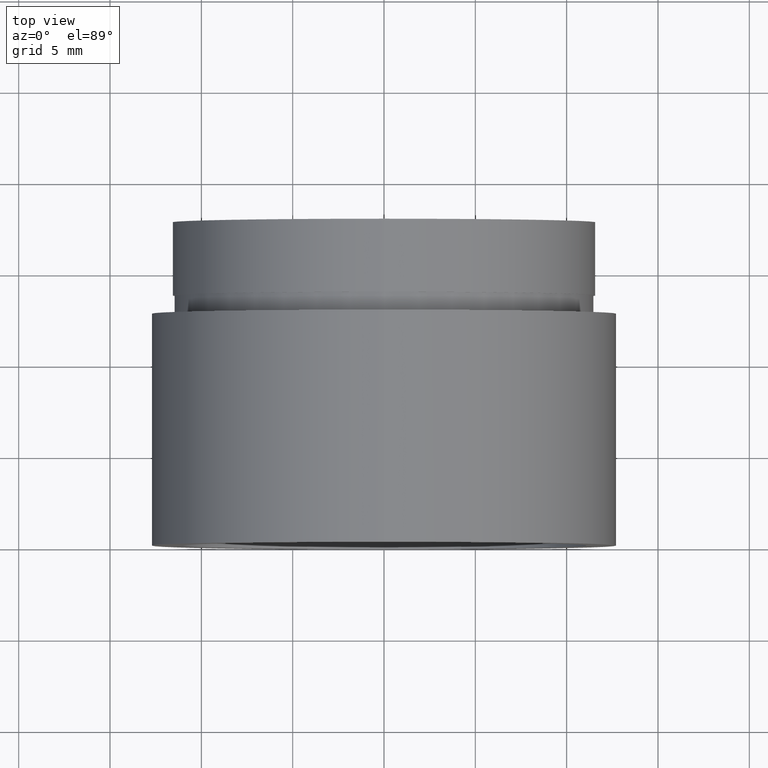
[diagram: clean part render]
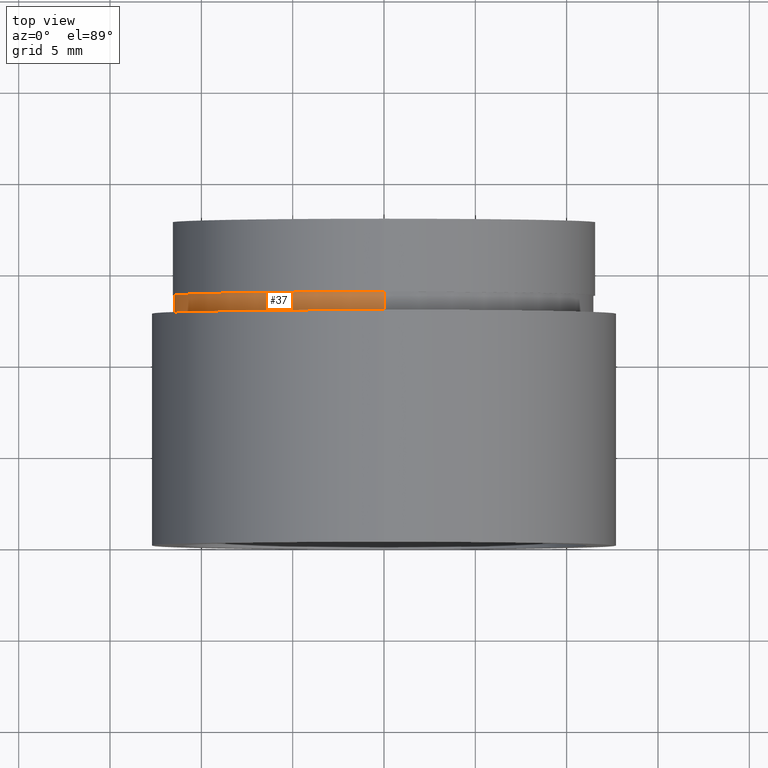
[diagram: same view with one face highlighted and labeled with its STEP entity id]
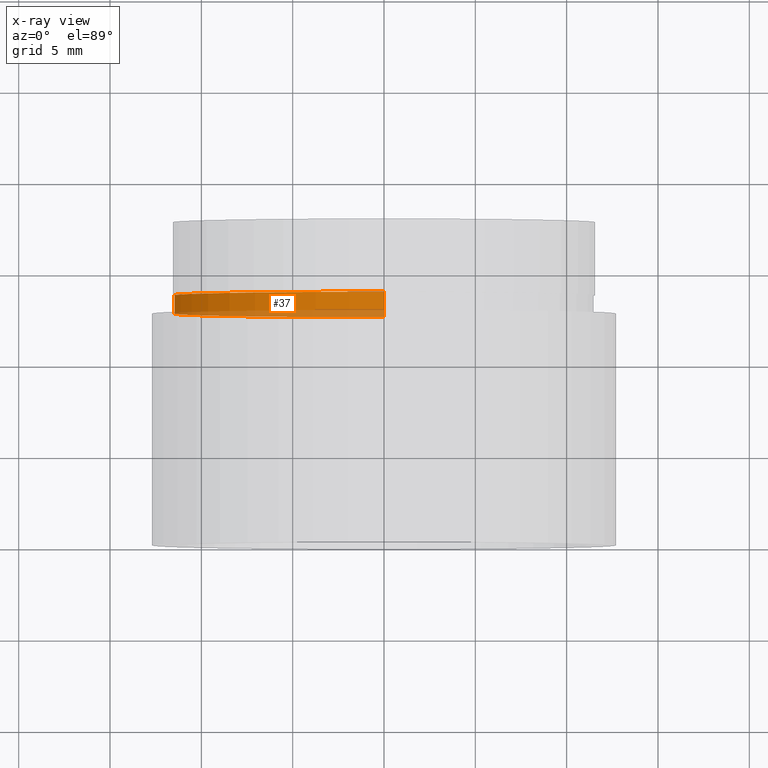
[diagram: x-ray of the same camera — body ghosted, the highlighted face saturated]
A machine part, top view. The second image highlights one B-rep face of the part: STEP entity #37.
The next image is the same camera in x-ray: the body ghosted, the highlighted face saturated — about 24% of this face is hidden behind the body in this view.
In plain terms, the highlighted cylindrical surface (partial cylindrical patch) has radius 11.5 mm, axis along (-0, 1, -0).
Its self-contained STEP definition (entity closure, byte-faithful):
#3 = ORIENTED_EDGE ( 'NONE', *, *, #515, .F. ) ;
#4 = CARTESIAN_POINT ( 'NONE',  ( 1.408343819019458500E-015, 12.69999999999998900, -11.50000000000002000 ) ) ;
#10 = DIRECTION ( 'NONE',  ( 0.0000000000000000000, 0.0000000000000000000, 1.000000000000000000 ) ) ;
#20 = VECTOR ( 'NONE', #416, 1000.000000000000000 ) ;
#23 = LINE ( 'NONE', #28, #20 ) ;
#28 = CARTESIAN_POINT ( 'NONE',  ( 1.408343819019458500E-015, 161.3761669434274500, -11.50000000000002000 ) ) ;
#33 = DIRECTION ( 'NONE',  ( -0.0000000000000000000, 1.000000000000000000, -0.0000000000000000000 ) ) ;
#35 = AXIS2_PLACEMENT_3D ( 'NONE', #252, #435, #245 ) ;
#37 = ADVANCED_FACE ( 'NONE', ( #372 ), #539, .T. ) ;
#60 = VERTEX_POINT ( 'NONE', #181 ) ;
#65 = EDGE_CURVE ( 'NONE', #299, #543, #23, .T. ) ;
#113 = DIRECTION ( 'NONE',  ( -0.0000000000000000000, 1.000000000000000000, -0.0000000000000000000 ) ) ;
#122 = EDGE_CURVE ( 'NONE', #60, #321, #608, .T. ) ;
#156 = EDGE_LOOP ( 'NONE', ( #489, #365, #384, #3 ) ) ;
#181 = CARTESIAN_POINT ( 'NONE',  ( 0.0000000000000000000, 12.69999999999998900, 11.50000000000002000 ) ) ;
#227 = CARTESIAN_POINT ( 'NONE',  ( 0.0000000000000000000, 161.3761669434274500, 0.0000000000000000000 ) ) ;
#245 = DIRECTION ( 'NONE',  ( 0.0000000000000000000, 0.0000000000000000000, 1.000000000000000000 ) ) ;
#252 = CARTESIAN_POINT ( 'NONE',  ( 0.0000000000000000000, 12.69999999999998900, 0.0000000000000000000 ) ) ;
#263 = CARTESIAN_POINT ( 'NONE',  ( 1.408343819019458500E-015, 13.69999999999999000, -11.50000000000002000 ) ) ;
#264 = AXIS2_PLACEMENT_3D ( 'NONE', #449, #113, #10 ) ;
#299 = VERTEX_POINT ( 'NONE', #4 ) ;
#302 = CARTESIAN_POINT ( 'NONE',  ( 0.0000000000000000000, 13.69999999999999000, 11.50000000000002000 ) ) ;
#311 = AXIS2_PLACEMENT_3D ( 'NONE', #227, #597, #318 ) ;
#318 = DIRECTION ( 'NONE',  ( 0.0000000000000000000, 0.0000000000000000000, 1.000000000000000000 ) ) ;
#321 = VERTEX_POINT ( 'NONE', #302 ) ;
#365 = ORIENTED_EDGE ( 'NONE', *, *, #549, .T. ) ;
#372 = FACE_OUTER_BOUND ( 'NONE', #156, .T. ) ;
#384 = ORIENTED_EDGE ( 'NONE', *, *, #122, .T. ) ;
#394 = CIRCLE ( 'NONE', #35, 11.50000000000002000 ) ;
#416 = DIRECTION ( 'NONE',  ( -0.0000000000000000000, 1.000000000000000000, -0.0000000000000000000 ) ) ;
#435 = DIRECTION ( 'NONE',  ( -0.0000000000000000000, 1.000000000000000000, -0.0000000000000000000 ) ) ;
#442 = VECTOR ( 'NONE', #33, 1000.000000000000000 ) ;
#449 = CARTESIAN_POINT ( 'NONE',  ( 0.0000000000000000000, 13.69999999999999000, 0.0000000000000000000 ) ) ;
#489 = ORIENTED_EDGE ( 'NONE', *, *, #65, .F. ) ;
#503 = CIRCLE ( 'NONE', #264, 11.50000000000002000 ) ;
#511 = CARTESIAN_POINT ( 'NONE',  ( 0.0000000000000000000, 161.3761669434274500, 11.50000000000002000 ) ) ;
#515 = EDGE_CURVE ( 'NONE', #543, #321, #503, .T. ) ;
#539 = CYLINDRICAL_SURFACE ( 'NONE', #311, 11.50000000000002000 ) ;
#543 = VERTEX_POINT ( 'NONE', #263 ) ;
#549 = EDGE_CURVE ( 'NONE', #299, #60, #394, .T. ) ;
#597 = DIRECTION ( 'NONE',  ( -0.0000000000000000000, 1.000000000000000000, -0.0000000000000000000 ) ) ;
#608 = LINE ( 'NONE', #511, #442 ) ;